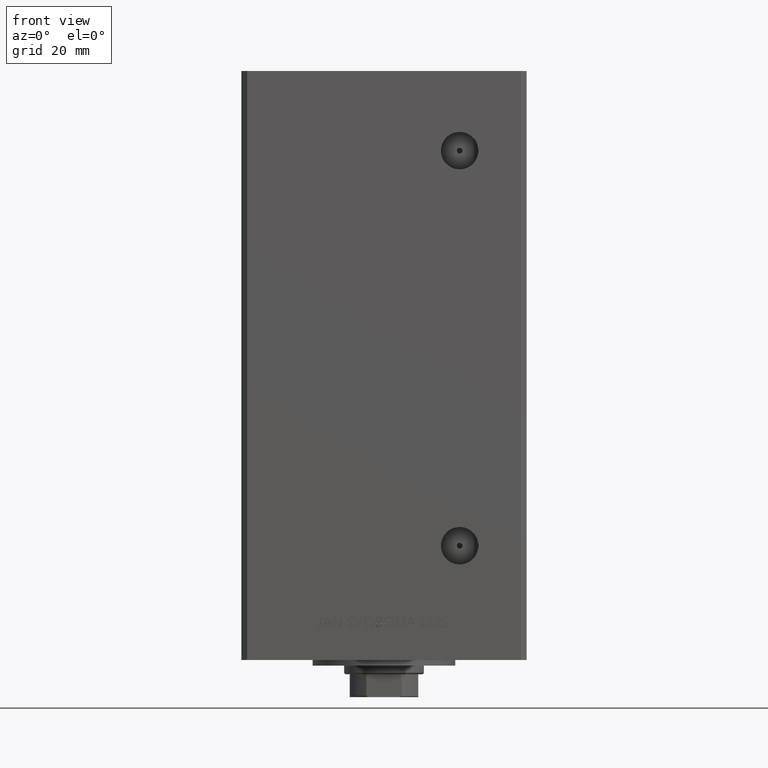
[diagram: clean part render]
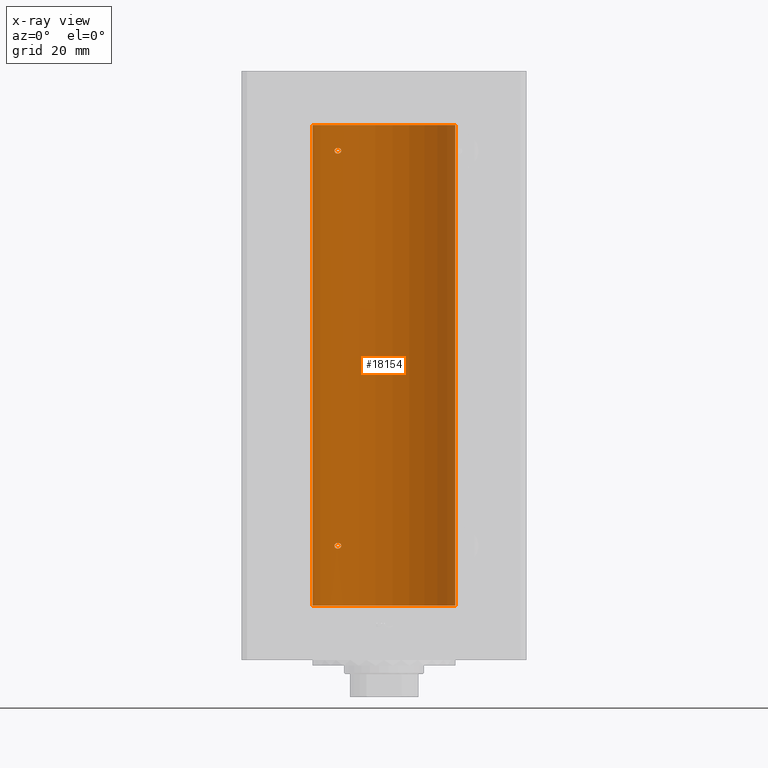
[diagram: x-ray — body ghosted, one internal face saturated and labeled with its STEP entity id]
A machine part, front view, then the same camera in x-ray: the body is ghosted and one INTERNAL B-rep face — a face not visible from any outside direction — is saturated and labeled: STEP entity #18154.
In plain terms, the highlighted cylindrical surface (partial cylindrical patch) has radius 25 mm, axis along (-0, -0, -1).
Its self-contained STEP definition (entity closure, byte-faithful):
#268 = VECTOR ( 'NONE', #36055, 1000.000000000000000 ) ;
#349 = CARTESIAN_POINT ( 'NONE',  ( -15.70535969280552280, 19.45169171760802485, 160.3989607721124742 ) ) ;
#599 = CARTESIAN_POINT ( 'NONE',  ( -17.14593038898727428, 18.19399314418736324, 160.0959448831964664 ) ) ;
#1097 = CARTESIAN_POINT ( 'NONE',  ( -15.00000000000018474, 20.00000000000002487, 159.5840388036241677 ) ) ;
#1349 = CARTESIAN_POINT ( 'NONE',  ( -17.34935157289746854, 18.00000000000001421, 159.6709736906063029 ) ) ;
#1763 = CARTESIAN_POINT ( 'NONE',  ( -15.34624284195510135, 19.73614442075936992, 21.68761853185130306 ) ) ;
#2678 = CARTESIAN_POINT ( 'NONE',  ( -17.30269557861145202, 18.04515136187498570, 20.66604208175573376 ) ) ;
#2693 = CARTESIAN_POINT ( 'NONE',  ( -15.70664578139651546, 19.45064696206092947, 158.6005795994921357 ) ) ;
#3212 = DIRECTION ( 'NONE',  ( -0.000000000000000000, 0.000000000000000000, 1.000000000000000000 ) ) ;
#3538 = DIRECTION ( 'NONE',  ( -0.000000000000000000, 0.000000000000000000, 1.000000000000000000 ) ) ;
#4286 = ORIENTED_EDGE ( 'NONE', *, *, #36666, .T. ) ;
#4652 = CARTESIAN_POINT ( 'NONE',  ( -16.46913072925702792, 18.81168496547891777, 160.5057775588113884 ) ) ;
#5715 = CARTESIAN_POINT ( 'NONE',  ( 0.000000000000000000, 0.000000000000000000, 168.5000000000000000 ) ) ;
#6239 = ORIENTED_EDGE ( 'NONE', *, *, #43714, .F. ) ;
#6374 = CIRCLE ( 'NONE', #33979, 25.00000000000000000 ) ;
#6495 = CARTESIAN_POINT ( 'NONE',  ( -17.34935157289749696, 17.99999999999998579, 20.82899836042580688 ) ) ;
#6746 = CARTESIAN_POINT ( 'NONE',  ( -15.00000000000002842, 19.99999999999998224, 20.99999999999998934 ) ) ;
#6828 = VERTEX_POINT ( 'NONE', #45889 ) ;
#7975 = CARTESIAN_POINT ( 'NONE',  ( -15.34624284195505162, 19.73614442075940190, 160.1876185318513137 ) ) ;
#8468 = CARTESIAN_POINT ( 'NONE',  ( -16.99843849356149050, 18.33190197607055794, 160.2468335145757123 ) ) ;
#8876 = CARTESIAN_POINT ( 'NONE',  ( -15.95796937689564565, 19.24499537862563869, 21.97577309965217651 ) ) ;
#9523 = CYLINDRICAL_SURFACE ( 'NONE', #26746, 25.00000000000000000 ) ;
#9559 = CARTESIAN_POINT ( 'NONE',  ( -17.30269557861141294, 18.04515136187502478, 159.1660420817557338 ) ) ;
#9639 = CARTESIAN_POINT ( 'NONE',  ( -16.46913072925707056, 18.81168496547888580, 22.00577755881141329 ) ) ;
#9814 = CARTESIAN_POINT ( 'NONE',  ( -16.71492528194901794, 18.59135325782701642, 158.5801415583420066 ) ) ;
#10053 = CARTESIAN_POINT ( 'NONE',  ( -16.71492528194906768, 18.59135325782697734, 20.08014155834204217 ) ) ;
#10070 = CARTESIAN_POINT ( 'NONE',  ( -14.99999999999999112, 20.00000000000000711, 159.5000000000000000 ) ) ;
#10250 = EDGE_CURVE ( 'NONE', #6828, #17272, #37859, .T. ) ;
#10327 = CARTESIAN_POINT ( 'NONE',  ( -17.05249165747618534, 18.28208333366438509, 158.7922192200364577 ) ) ;
#11479 = CIRCLE ( 'NONE', #30134, 25.00000000000000000 ) ;
#11884 = CARTESIAN_POINT ( 'NONE',  ( 25.00000000000000000, 3.061616997868383043E-15, 168.5000000000000000 ) ) ;
#11928 = CARTESIAN_POINT ( 'NONE',  ( 0.000000000000000000, 0.000000000000000000, 168.5000000000000000 ) ) ;
#12290 = CARTESIAN_POINT ( 'NONE',  ( -15.01476641895662567, 19.98894406010707314, 159.6687945634013204 ) ) ;
#12391 = EDGE_LOOP ( 'NONE', ( #45724, #47526 ) ) ;
#12447 = CARTESIAN_POINT ( 'NONE',  ( -17.14593038898733113, 18.19399314418732061, 21.59594488319649130 ) ) ;
#12540 = CARTESIAN_POINT ( 'NONE',  ( -17.05007833789892047, 18.28384926940287869, 160.2013739990121621 ) ) ;
#12786 = CARTESIAN_POINT ( 'NONE',  ( -17.34935157289806185, 17.99999999999981526, 159.5000000000001137 ) ) ;
#12950 = CARTESIAN_POINT ( 'NONE',  ( -17.05007833789895955, 18.28384926940283606, 21.70137399901213371 ) ) ;
#13592 = VERTEX_POINT ( 'NONE', #20328 ) ;
#13614 = CARTESIAN_POINT ( 'NONE',  ( -17.34935157289810093, 17.99999999999978328, 21.00000000000008882 ) ) ;
#13669 = CARTESIAN_POINT ( 'NONE',  ( -25.00000000000000000, 0.000000000000000000, 0.000000000000000000 ) ) ;
#13891 = CARTESIAN_POINT ( 'NONE',  ( -17.15234217094406333, 18.18812579706696653, 158.8965730437749926 ) ) ;
#14123 = CARTESIAN_POINT ( 'NONE',  ( -15.06722189748651175, 19.94943357555936458, 20.67598032487887849 ) ) ;
#15857 = CARTESIAN_POINT ( 'NONE',  ( -17.19010376497220705, 18.15221652163111088, 160.0356701235680248 ) ) ;
#15997 = CARTESIAN_POINT ( 'NONE',  ( -17.34935157289806185, 17.99999999999981526, 159.5000000000001137 ) ) ;
#16153 = CARTESIAN_POINT ( 'NONE',  ( -17.34935157289810093, 17.99999999999978328, 21.00000000000008882 ) ) ;
#16190 = EDGE_CURVE ( 'NONE', #21501, #22928, #6374, .T. ) ;
#16603 = CARTESIAN_POINT ( 'NONE',  ( -15.10490800566735103, 19.92096305044241689, 159.8962931740442457 ) ) ;
#16652 = CARTESIAN_POINT ( 'NONE',  ( -15.00000000000002842, 19.99999999999998224, 20.99999999999998934 ) ) ;
#16762 = CARTESIAN_POINT ( 'NONE',  ( -16.72476285461321766, 18.58415905903079945, 21.94494476079569978 ) ) ;
#17147 = FACE_BOUND ( 'NONE', #49303, .T. ) ;
#17184 = CARTESIAN_POINT ( 'NONE',  ( -15.95808436639360117, 19.24489366819300784, 158.5242608788495886 ) ) ;
#17272 = VERTEX_POINT ( 'NONE', #49106 ) ;
#17646 = EDGE_CURVE ( 'NONE', #17272, #6828, #32528, .T. ) ;
#17944 = CARTESIAN_POINT ( 'NONE',  ( -15.01482636753733146, 19.98889854010115741, 159.3312026610077226 ) ) ;
#18018 = VERTEX_POINT ( 'NONE', #16153 ) ;
#18154 = ADVANCED_FACE ( 'NONE', ( #44566, #41260, #17147 ), #9523, .F. ) ;
#18674 = CARTESIAN_POINT ( 'NONE',  ( -17.15234217094410596, 18.18812579706693100, 20.39657304377494640 ) ) ;
#18950 = CARTESIAN_POINT ( 'NONE',  ( 0.000000000000000000, 0.000000000000000000, 0.000000000000000000 ) ) ;
#19901 = CARTESIAN_POINT ( 'NONE',  ( -15.06763582406798818, 19.94912143246363811, 159.8250699387718043 ) ) ;
#19902 = VERTEX_POINT ( 'NONE', #13669 ) ;
#20328 = CARTESIAN_POINT ( 'NONE',  ( 25.00000000000000000, 3.061616997868383043E-15, 0.000000000000000000 ) ) ;
#20820 = CARTESIAN_POINT ( 'NONE',  ( -25.00000000000000000, 0.000000000000000000, 168.5000000000000000 ) ) ;
#21242 = CARTESIAN_POINT ( 'NONE',  ( -16.83415218046510731, 18.48332662461726983, 158.6343172662811867 ) ) ;
#21495 = CARTESIAN_POINT ( 'NONE',  ( -16.08757264251632080, 19.13682698743034649, 158.5034427658482343 ) ) ;
#21501 = VERTEX_POINT ( 'NONE', #11884 ) ;
#21990 = CARTESIAN_POINT ( 'NONE',  ( -16.08757264251635277, 19.13682698743030386, 20.00344276584819525 ) ) ;
#22580 = EDGE_CURVE ( 'NONE', #13592, #19902, #11479, .T. ) ;
#22828 = ORIENTED_EDGE ( 'NONE', *, *, #22580, .F. ) ;
#22928 = VERTEX_POINT ( 'NONE', #35625 ) ;
#23035 = CARTESIAN_POINT ( 'NONE',  ( 25.00000000000000000, 3.061616997868383043E-15, 168.5000000000000000 ) ) ;
#23125 = EDGE_LOOP ( 'NONE', ( #6239, #46999, #4286, #22828 ) ) ;
#23152 = LINE ( 'NONE', #20820, #268 ) ;
#23364 = DIRECTION ( 'NONE',  ( 1.000000000000000000, 0.000000000000000000, 0.000000000000000000 ) ) ;
#23638 = CARTESIAN_POINT ( 'NONE',  ( -15.00000000000002842, 19.99999999999998224, 20.99999999999998934 ) ) ;
#24381 = CARTESIAN_POINT ( 'NONE',  ( -15.58230678163764260, 19.55030131031895380, 21.84373948670293331 ) ) ;
#24626 = CARTESIAN_POINT ( 'NONE',  ( -17.34935157289749696, 17.99999999999998224, 21.17097369060632417 ) ) ;
#25054 = CARTESIAN_POINT ( 'NONE',  ( -15.06722189748648866, 19.94943357555938590, 159.1759803248789069 ) ) ;
#25546 = CARTESIAN_POINT ( 'NONE',  ( -16.46844752485328911, 18.81003400474351039, 20.01154431903891862 ) ) ;
#25820 = CARTESIAN_POINT ( 'NONE',  ( -15.58164749401199956, 19.55082150006405328, 158.6566780726851960 ) ) ;
#26061 = CARTESIAN_POINT ( 'NONE',  ( -15.23538646979301170, 19.82157806413531631, 20.41199989528276149 ) ) ;
#26746 = AXIS2_PLACEMENT_3D ( 'NONE', #5715, #48889, #49144 ) ;
#27688 = CARTESIAN_POINT ( 'NONE',  ( -15.01476641895664876, 19.98894406010705183, 21.16879456340133459 ) ) ;
#27776 = CARTESIAN_POINT ( 'NONE',  ( -15.58230678163759642, 19.55030131031898577, 160.3437394867029298 ) ) ;
#28432 = CARTESIAN_POINT ( 'NONE',  ( -17.30163983552693452, 18.04615713653364750, 21.33600747272777909 ) ) ;
#28863 = CARTESIAN_POINT ( 'NONE',  ( -15.23538646979298505, 19.82157806413532697, 158.9119998952828041 ) ) ;
#29104 = CARTESIAN_POINT ( 'NONE',  ( -15.00000000000022027, 20.00000000000000355, 20.91594745860243165 ) ) ;
#29121 = CARTESIAN_POINT ( 'NONE',  ( -15.10490010356605595, 19.92096840819819903, 159.1037666713225462 ) ) ;
#29359 = CARTESIAN_POINT ( 'NONE',  ( -16.34293146994555812, 18.91921593628406129, 19.99734259067261277 ) ) ;
#29821 = B_SPLINE_CURVE_WITH_KNOTS ( 'NONE', 3,
 ( #13614, #6495, #2678, #18674, #48908, #49415, #10053, #25546, #29359, #21990, #33171, #29864, #45346, #34175, #26061, #30124, #14123, #41530, #29104, #6746 ),
 .UNSPECIFIED., .F., .F.,
 ( 4, 2, 2, 2, 2, 2, 2, 2, 2, 4 ),
 ( 2.011680962688586771E-16, 0.0005040871078734975291, 0.001008174215746794047, 0.001512261323620090565, 0.002016348431493386866, 0.002520435539366683384, 0.003024522647239979902, 0.003528609755113272951, 0.003780653309049920342, 0.004032696862986568168 ),
 .UNSPECIFIED. ) ;
#29864 = CARTESIAN_POINT ( 'NONE',  ( -15.70664578139654566, 19.45064696206090105, 20.10057959949211082 ) ) ;
#29882 = CARTESIAN_POINT ( 'NONE',  ( -15.00000000000018119, 20.00000000000001421, 159.4159474586024317 ) ) ;
#30011 = VERTEX_POINT ( 'NONE', #16652 ) ;
#30124 = CARTESIAN_POINT ( 'NONE',  ( -15.10490010356607904, 19.92096840819818127, 20.60376667132250716 ) ) ;
#30134 = AXIS2_PLACEMENT_3D ( 'NONE', #18950, #3212, #34453 ) ;
#31146 = LINE ( 'NONE', #23035, #37697 ) ;
#31829 = CARTESIAN_POINT ( 'NONE',  ( -15.95796937689560480, 19.24499537862567422, 160.4757730996522014 ) ) ;
#32528 = B_SPLINE_CURVE_WITH_KNOTS ( 'NONE', 3,
 ( #15997, #33189, #9559, #13891, #10327, #21242, #9814, #36469, #40284, #21495, #17184, #2693, #25820, #40784, #28863, #29121, #25054, #17944, #29882, #10070 ),
 .UNSPECIFIED., .F., .F.,
 ( 4, 2, 2, 2, 2, 2, 2, 2, 2, 4 ),
 ( 2.254873622441466949E-16, 0.0005040871078735091300, 0.001008174215746792746, 0.001512261323620076470, 0.002016348431493359978, 0.002520435539366643485, 0.003024522647239927427, 0.003528609755113210501, 0.003780653309049884347, 0.004032696862986557759 ),
 .UNSPECIFIED. ) ;
#32737 = ORIENTED_EDGE ( 'NONE', *, *, #10250, .F. ) ;
#32755 = CARTESIAN_POINT ( 'NONE',  ( -16.08745393861406825, 19.13692152169247507, 21.99650150998692766 ) ) ;
#33171 = CARTESIAN_POINT ( 'NONE',  ( -15.95808436639362782, 19.24489366819297942, 20.02426087884952821 ) ) ;
#33189 = CARTESIAN_POINT ( 'NONE',  ( -17.34935157289747210, 18.00000000000002132, 159.3289983604258850 ) ) ;
#33979 = AXIS2_PLACEMENT_3D ( 'NONE', #11928, #3538, #23364 ) ;
#34175 = CARTESIAN_POINT ( 'NONE',  ( -15.34666241858321634, 19.73581294411414078, 20.31212246053760495 ) ) ;
#34453 = DIRECTION ( 'NONE',  ( 1.000000000000000000, 0.000000000000000000, 0.000000000000000000 ) ) ;
#35150 = CARTESIAN_POINT ( 'NONE',  ( -15.23594348686699185, 19.82115246225716021, 160.0887219326858713 ) ) ;
#35453 = DIRECTION ( 'NONE',  ( -0.000000000000000000, -0.000000000000000000, -1.000000000000000000 ) ) ;
#35558 = CARTESIAN_POINT ( 'NONE',  ( -15.23594348686703448, 19.82115246225713179, 21.58872193268582151 ) ) ;
#35625 = CARTESIAN_POINT ( 'NONE',  ( -25.00000000000000000, 0.000000000000000000, 168.5000000000000000 ) ) ;
#35891 = CARTESIAN_POINT ( 'NONE',  ( -14.99999999999999112, 20.00000000000000711, 159.5000000000000000 ) ) ;
#36048 = CARTESIAN_POINT ( 'NONE',  ( -17.34935157289810093, 17.99999999999978328, 21.00000000000008882 ) ) ;
#36055 = DIRECTION ( 'NONE',  ( -0.000000000000000000, -0.000000000000000000, -1.000000000000000000 ) ) ;
#36137 = CARTESIAN_POINT ( 'NONE',  ( -17.30163983552688833, 18.04615713653367948, 159.8360074727278288 ) ) ;
#36469 = CARTESIAN_POINT ( 'NONE',  ( -16.46844752485324648, 18.81003400474354947, 158.5115443190388760 ) ) ;
#36666 = EDGE_CURVE ( 'NONE', #22928, #19902, #23152, .T. ) ;
#37697 = VECTOR ( 'NONE', #35453, 1000.000000000000000 ) ;
#37859 = B_SPLINE_CURVE_WITH_KNOTS ( 'NONE', 3,
 ( #35891, #1097, #12290, #19901, #16603, #35150, #7975, #27776, #349, #31829, #43253, #4652, #43501, #8468, #12540, #599, #15857, #36137, #1349, #12786 ),
 .UNSPECIFIED., .F., .F.,
 ( 4, 2, 2, 2, 2, 2, 2, 2, 2, 4 ),
 ( 0.004032696862986557759, 0.004284699222246954667, 0.004536701581507351574, 0.005040706300028082940, 0.005544711018548810835, 0.006048715737069539598, 0.007056725174110996257, 0.007308727533371349797, 0.007560729892631701601, 0.008064734611152412150 ),
 .UNSPECIFIED. ) ;
#37941 = EDGE_CURVE ( 'NONE', #30011, #18018, #42859, .T. ) ;
#39106 = CARTESIAN_POINT ( 'NONE',  ( -15.00000000000021316, 19.99999999999998934, 21.08403880362416061 ) ) ;
#40284 = CARTESIAN_POINT ( 'NONE',  ( -16.34293146994552259, 18.91921593628409681, 158.4973425906725879 ) ) ;
#40362 = CARTESIAN_POINT ( 'NONE',  ( -17.19010376497224968, 18.15221652163108601, 21.53567012356800703 ) ) ;
#40784 = CARTESIAN_POINT ( 'NONE',  ( -15.34666241858318259, 19.73581294411415854, 158.8121224605376085 ) ) ;
#41260 = FACE_BOUND ( 'NONE', #12391, .T. ) ;
#41530 = CARTESIAN_POINT ( 'NONE',  ( -15.01482636753736166, 19.98889854010113254, 20.83120266100769769 ) ) ;
#42859 = B_SPLINE_CURVE_WITH_KNOTS ( 'NONE', 3,
 ( #23638, #39106, #27688, #43164, #47738, #35558, #1763, #24381, #43416, #8876, #32755, #9639, #16762, #47233, #12950, #12447, #40362, #28432, #24626, #36048 ),
 .UNSPECIFIED., .F., .F.,
 ( 4, 2, 2, 2, 2, 2, 2, 2, 2, 4 ),
 ( 0.004032696862986568168, 0.004284699222246932983, 0.004536701581507298665, 0.005040706300028030031, 0.005544711018548761396, 0.006048715737069493628, 0.007056725174110963297, 0.007308727533371326378, 0.007560729892631690326, 0.008064734611152429497 ),
 .UNSPECIFIED. ) ;
#43164 = CARTESIAN_POINT ( 'NONE',  ( -15.06763582406801483, 19.94912143246361325, 21.32506993877174395 ) ) ;
#43253 = CARTESIAN_POINT ( 'NONE',  ( -16.08745393861402917, 19.13692152169251059, 160.4965015099869277 ) ) ;
#43416 = CARTESIAN_POINT ( 'NONE',  ( -15.70535969280557254, 19.45169171760800708, 21.89896077211249192 ) ) ;
#43501 = CARTESIAN_POINT ( 'NONE',  ( -16.72476285461317502, 18.58415905903083498, 160.4449447607956643 ) ) ;
#43714 = EDGE_CURVE ( 'NONE', #21501, #13592, #31146, .T. ) ;
#44566 = FACE_OUTER_BOUND ( 'NONE', #23125, .T. ) ;
#45346 = CARTESIAN_POINT ( 'NONE',  ( -15.58164749401203686, 19.55082150006403907, 20.15667807268518885 ) ) ;
#45724 = ORIENTED_EDGE ( 'NONE', *, *, #46692, .F. ) ;
#45889 = CARTESIAN_POINT ( 'NONE',  ( -14.99999999999999112, 20.00000000000000711, 159.5000000000000000 ) ) ;
#46692 = EDGE_CURVE ( 'NONE', #18018, #30011, #29821, .T. ) ;
#46999 = ORIENTED_EDGE ( 'NONE', *, *, #16190, .T. ) ;
#47233 = CARTESIAN_POINT ( 'NONE',  ( -16.99843849356152248, 18.33190197607051886, 21.74683351457564839 ) ) ;
#47526 = ORIENTED_EDGE ( 'NONE', *, *, #37941, .F. ) ;
#47738 = CARTESIAN_POINT ( 'NONE',  ( -15.10490800566739011, 19.92096305044238491, 21.39629317404425279 ) ) ;
#48889 = DIRECTION ( 'NONE',  ( -0.000000000000000000, -0.000000000000000000, -1.000000000000000000 ) ) ;
#48908 = CARTESIAN_POINT ( 'NONE',  ( -17.05249165747622442, 18.28208333366434601, 20.29221922003641509 ) ) ;
#48945 = ORIENTED_EDGE ( 'NONE', *, *, #17646, .F. ) ;
#49106 = CARTESIAN_POINT ( 'NONE',  ( -17.34935157289806185, 17.99999999999981526, 159.5000000000001137 ) ) ;
#49144 = DIRECTION ( 'NONE',  ( -1.000000000000000000, 0.000000000000000000, 0.000000000000000000 ) ) ;
#49303 = EDGE_LOOP ( 'NONE', ( #48945, #32737 ) ) ;
#49415 = CARTESIAN_POINT ( 'NONE',  ( -16.83415218046515349, 18.48332662461723785, 20.13431726628115115 ) ) ;